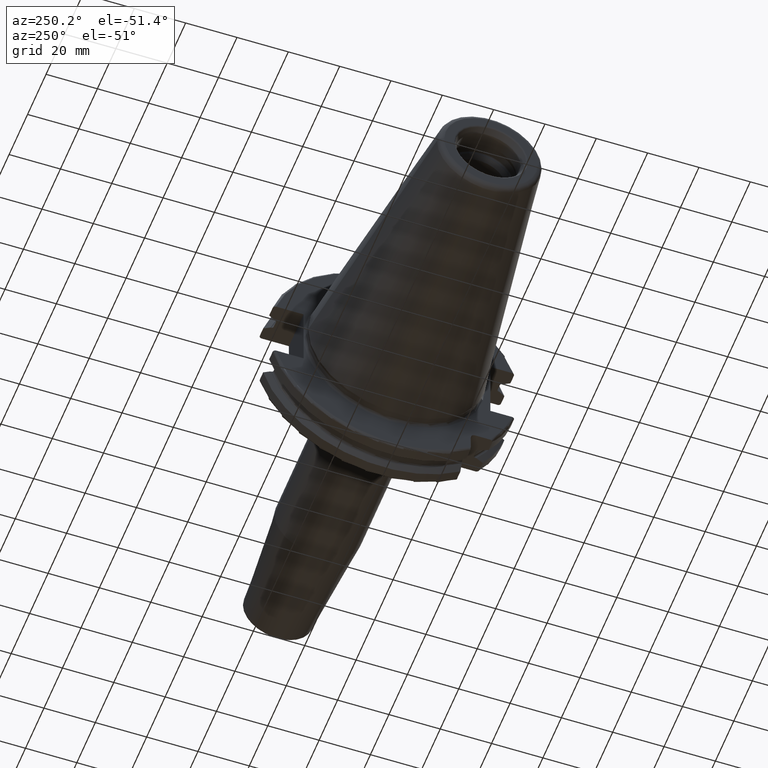
[diagram: clean part render]
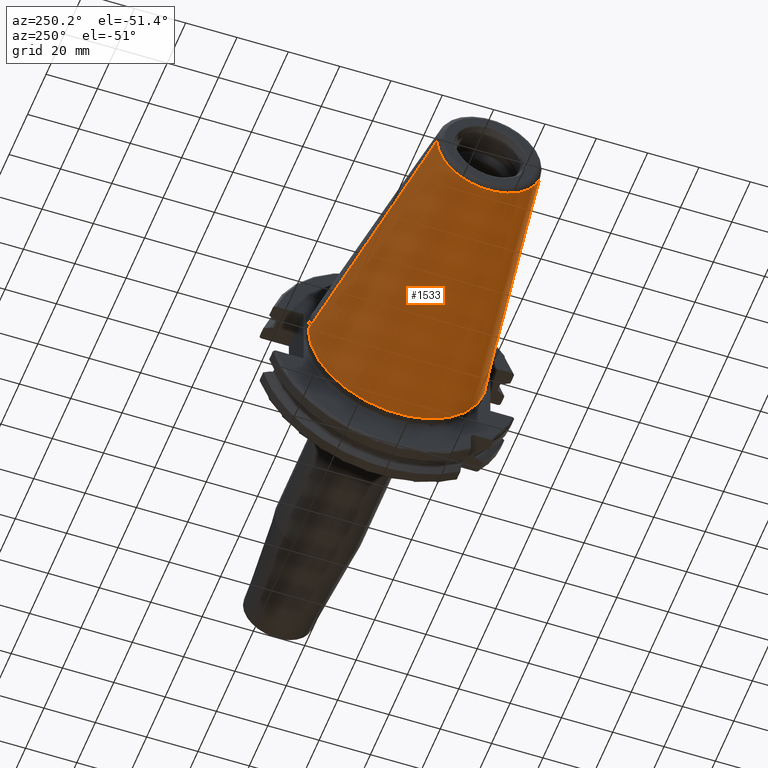
[diagram: same view with one face highlighted and labeled with its STEP entity id]
A machine part, auxiliary view. The second image highlights one B-rep face of the part: STEP entity #1533.
In plain terms, the highlighted conical surface has half-angle 8.298 deg.
Its self-contained STEP definition (entity closure, byte-faithful):
#32=CARTESIAN_POINT('',(-9.967471700563E1,0.E0,0.E0));
#33=DIRECTION('',(-1.E0,0.E0,0.E0));
#34=DIRECTION('',(0.E0,1.E0,0.E0));
#35=AXIS2_PLACEMENT_3D('',#32,#33,#34);
#47=DIRECTION('',(-9.895312636440E-1,-1.443186691705E-1,0.E0));
#48=VECTOR('',#47,1.002343617797E2);
#49=CARTESIAN_POINT('',(-4.896823332305E-1,3.485358204157E1,0.E0));
#50=LINE('',#49,#48);
#51=DIRECTION('',(-9.895312636440E-1,1.443186691705E-1,0.E0));
#52=VECTOR('',#51,1.002343617797E2);
#53=CARTESIAN_POINT('',(-4.896823332305E-1,-3.485358204157E1,0.E0));
#54=LINE('',#53,#52);
#55=CARTESIAN_POINT('',(-4.896823332305E-1,0.E0,0.E0));
#56=DIRECTION('',(-1.E0,0.E0,0.E0));
#57=DIRECTION('',(0.E0,1.E0,0.E0));
#58=AXIS2_PLACEMENT_3D('',#55,#56,#57);
#1206=CARTESIAN_POINT('',(-9.967471700563E1,2.038789234437E1,0.E0));
#1208=VERTEX_POINT('',#1206);
#1210=CARTESIAN_POINT('',(-9.967471700563E1,-2.038789234437E1,0.E0));
#1212=VERTEX_POINT('',#1210);
#1274=CARTESIAN_POINT('',(-4.896823332305E-1,3.485358204157E1,0.E0));
#1275=VERTEX_POINT('',#1274);
#1276=CARTESIAN_POINT('',(-4.896823332305E-1,-3.485358204157E1,0.E0));
#1277=VERTEX_POINT('',#1276);
#1521=CARTESIAN_POINT('',(-5.008219966943E1,0.E0,0.E0));
#1522=DIRECTION('',(1.E0,0.E0,0.E0));
#1523=DIRECTION('',(0.E0,-1.E0,0.E0));
#1524=AXIS2_PLACEMENT_3D('',#1521,#1522,#1523);
#1525=CONICAL_SURFACE('',#1524,2.762073719297E1,8.297826828206E0);
#1526=ORIENTED_EDGE('',*,*,#1511,.T.);
#1527=ORIENTED_EDGE('',*,*,#1488,.T.);
#1528=ORIENTED_EDGE('',*,*,#1515,.F.);
#1530=ORIENTED_EDGE('',*,*,#1529,.F.);
#1531=EDGE_LOOP('',(#1526,#1527,#1528,#1530));
#1532=FACE_OUTER_BOUND('',#1531,.F.);
#1533=ADVANCED_FACE('',(#1532),#1525,.T.);
#36=CIRCLE('',#35,2.038789234437E1);
#59=CIRCLE('',#58,3.485358204157E1);
#1488=EDGE_CURVE('',#1208,#1212,#36,.T.);
#1511=EDGE_CURVE('',#1275,#1208,#50,.T.);
#1515=EDGE_CURVE('',#1277,#1212,#54,.T.);
#1529=EDGE_CURVE('',#1275,#1277,#59,.T.);